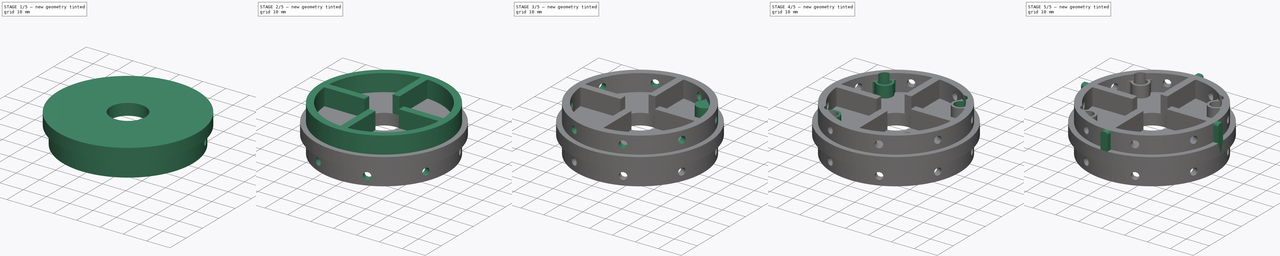
[diagram: build sequence overview — one tinted view per stage of 5, left to right]
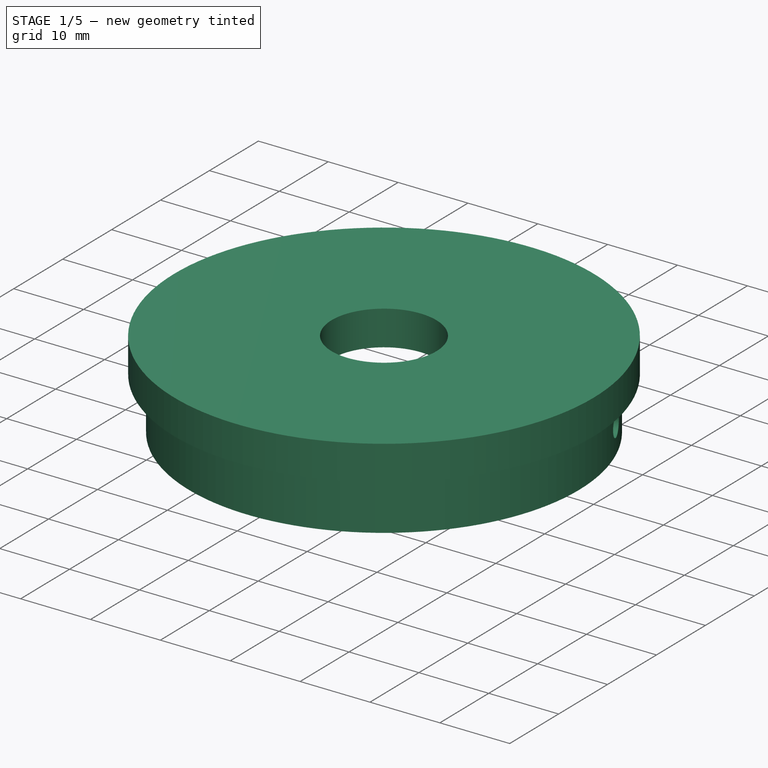
[diagram: stage 1 of 5 — iso view after this stage's code; geometry added in this stage tinted green]
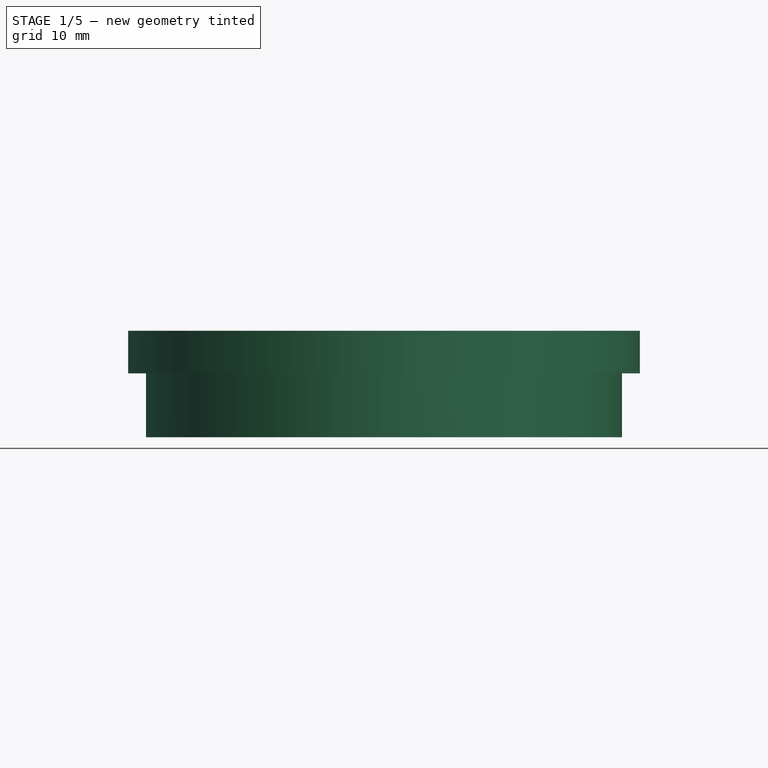
[diagram: stage 1 of 5 — front view after this stage's code; geometry added in this stage tinted green]
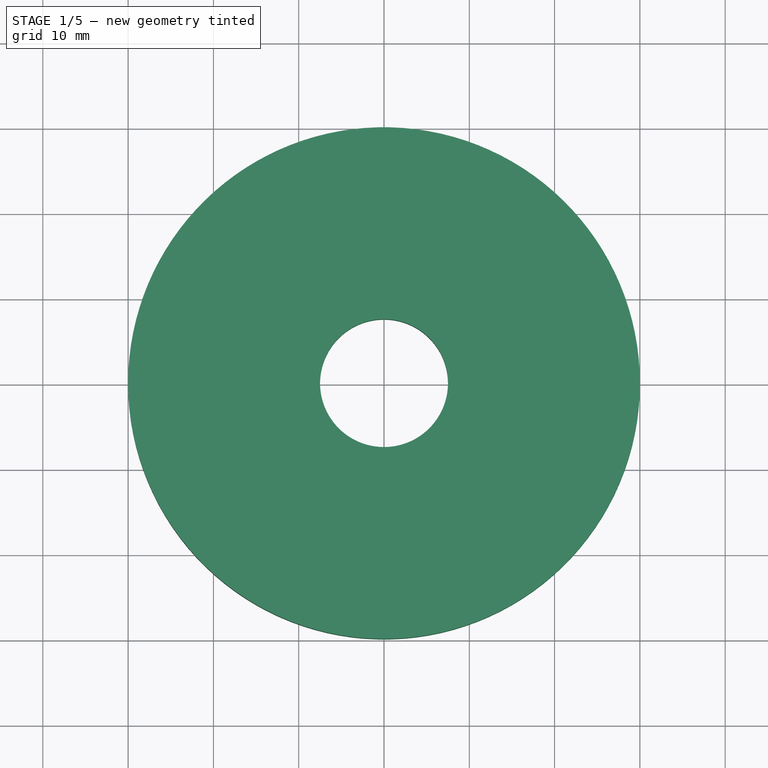
[diagram: stage 1 of 5 — top view after this stage's code; geometry added in this stage tinted green]
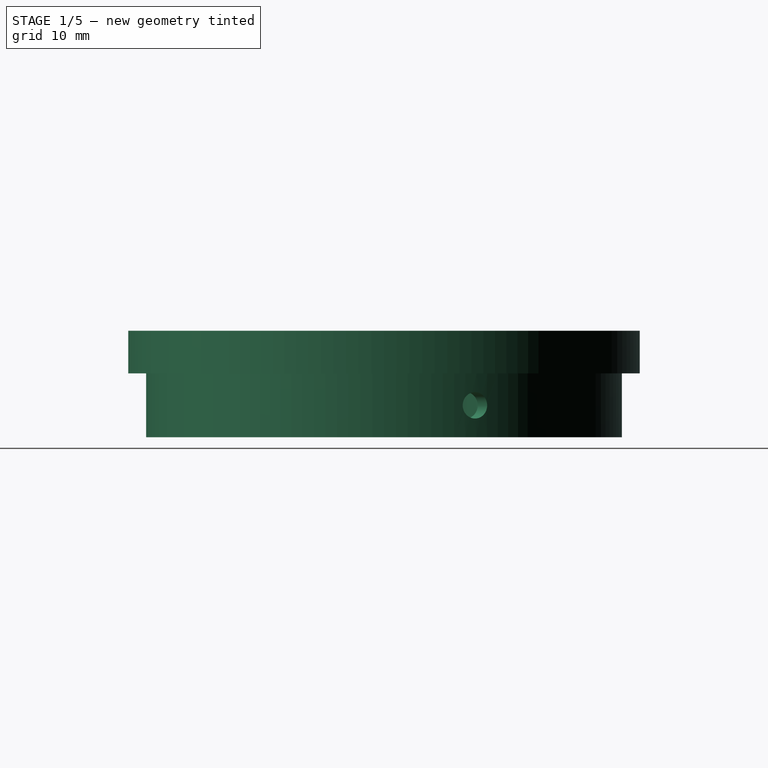
[diagram: stage 1 of 5 — right view after this stage's code; geometry added in this stage tinted green]
FCSTD DOCUMENT  (FreeCAD 1.0R39319 (Git))
Label: upper_retainer
License: All rights reserved
objects: Sketcher::SketchObject×14, PartDesign::Pad×5, PartDesign::Plane×5, PartDesign::Pocket×5, PartDesign::PolarPattern×5, PartDesign::Fillet×1, PartDesign::Body×1
note: 77 computed .brp shape members not serialized (recipe doc carries the construction recipe); baked Part::Feature solids carry a one-line shape summary decoded from their .brp

FEATURE [Sketcher::SketchObject] Sketch
  ArcFitTolerance = 1e-06
  AttachmentSupport = -> [XY_Plane]
  FullyConstrained = true
  MakeInternals = false
  MapMode = 5
  sketch-geometry (2):
    g0: Circle CenterX=0 CenterY=0 CenterZ=0 NormalX=0 NormalY=0 NormalZ=1 AngleXU=0 Radius=30
    g1: Circle CenterX=0 CenterY=0 CenterZ=0 NormalX=0 NormalY=0 NormalZ=1 AngleXU=0 Radius=7.5
  constraints (4):
    c: Diameter(g0) = 60
    c: Coincident(g0,g-1)
    c: Diameter(g1) = 15
    c: Coincident(g1,g0)
FEATURE [PartDesign::Pad] Pad  label="blocco_motore"
  Direction = (0,0,1)
  Length = 5
  Length2 = 10
  Profile = -> Sketch
  ReferenceAxis = -> Sketch [N_Axis]
  Refine = true
  Suppressed = false
  Type = 0
FEATURE [Sketcher::SketchObject] Sketch001
  ArcFitTolerance = 1e-06
  AttachmentSupport = -> [Pad]
  FullyConstrained = true
  MakeInternals = false
  MapMode = 5
  Placement = pos=(0,0,0) rot=(1,0,0;3.14159rad)
  sketch-geometry (18):
    g0: Circle CenterX=0 CenterY=0 CenterZ=0 NormalX=0 NormalY=0 NormalZ=1 AngleXU=0 Radius=27.9
    g1: Circle [constr] CenterX=0 CenterY=0 CenterZ=0 NormalX=0 NormalY=0 NormalZ=1 AngleXU=0 Radius=18.6
    g2: ArcOfCircle CenterX=0 CenterY=0 CenterZ=0 NormalX=0 NormalY=0 NormalZ=1 AngleXU=0 Radius=25 StartAngle=1.63083 EndAngle=3.08156
    g3: LineSegment StartX=-1.5 StartY=24.955 StartZ=0 EndX=-1.5 EndY=18.6 EndZ=0
    g4: LineSegment StartX=-1.5 StartY=18.6 StartZ=0 EndX=1.5 EndY=18.6 EndZ=0
    g5: LineSegment StartX=1.5 StartY=18.6 StartZ=0 EndX=1.5 EndY=24.955 EndZ=0
    g6: LineSegment StartX=18.6 StartY=1.5 StartZ=0 EndX=18.6 EndY=-1.5 EndZ=0
    g7: LineSegment StartX=18.6 StartY=-1.5 StartZ=0 EndX=24.955 EndY=-1.5 EndZ=0
    g8: LineSegment StartX=24.955 StartY=1.5 StartZ=0 EndX=18.6 EndY=1.5 EndZ=0
    g9: LineSegment StartX=-1.5 StartY=-18.6 StartZ=0 EndX=-1.5 EndY=-24.955 EndZ=0
    g10: LineSegment StartX=1.5 StartY=-24.955 StartZ=0 EndX=1.5 EndY=-18.6 EndZ=0
    g11: LineSegment StartX=1.5 StartY=-18.6 StartZ=0 EndX=-1.5 EndY=-18.6 EndZ=0
    g12: LineSegment StartX=-24.955 StartY=-1.5 StartZ=0 EndX=-18.6 EndY=-1.5 EndZ=0
    g13: LineSegment StartX=-18.6 StartY=-1.5 StartZ=0 EndX=-18.6 EndY=1.5 EndZ=0
    g14: LineSegment StartX=-18.6 StartY=1.5 StartZ=0 EndX=-24.955 EndY=1.5 EndZ=0
    g15: ArcOfCircle CenterX=0 CenterY=0 CenterZ=0 NormalX=0 NormalY=0 NormalZ=1 AngleXU=0 Radius=25 StartAngle=0.0600361 EndAngle=1.51076
    g16: ArcOfCircle CenterX=0 CenterY=0 CenterZ=0 NormalX=0 NormalY=0 NormalZ=1 AngleXU=0 Radius=25 StartAngle=4.77243 EndAngle=6.22315
    g17: ArcOfCircle CenterX=0 CenterY=0 CenterZ=0 NormalX=0 NormalY=0 NormalZ=1 AngleXU=0 Radius=25 StartAngle=3.20163 EndAngle=4.65235
  constraints (48):
    c: Diameter(g0) = 55.8
    c: Coincident(g0,g-1)
    c: Diameter(g1) = 37.2
    c: Coincident(g1,g0)
    c: Diameter(g2) = 50
    c: Coincident(g2,g0)
    c: Coincident(g3,g4)
    c: Coincident(g4,g5)
    c: Vertical(g3)
    c: Vertical(g5)
    c: Coincident(g6,g7)
    c: Coincident(g8,g6)
    c: Horizontal(g7)
    c: Horizontal(g8)
    c: Coincident(g10,g11)
    c: Coincident(g11,g9)
    c: Vertical(g9)
    c: Vertical(g10)
    c: Coincident(g12,g13)
    c: Coincident(g13,g14)
    c: Horizontal(g12)
    c: Horizontal(g14)
    c: Tangent(g4,g1)
    c: Symmetric(g3,g4,g-2)
    c: Coincident(g3,g2)
    c: Coincident(g5,g15)
    c: DistanceX(g3,g4) = 3
    c: DistanceY(g6,g6) = 3
    c: Tangent(g6,g1)
    c: Equal(g2,g15)
    c: Coincident(g2,g15)
    c: Coincident(g8,g15)
    c: Coincident(g7,g16)
    c: Symmetric(g6,g6,g-1)
    c: DistanceX(g9,g10) = 3
    c: Tangent(g11,g1)
    c: Symmetric(g9,g10,g-2)
    c: Equal(g2,g16)
    c: Coincident(g2,g16)
    c: Coincident(g9,g17)
    c: Coincident(g10,g16)
    c: DistanceY(g12,g13) = 3
    c: Tangent(g13,g1)
    c: Symmetric(g13,g12,g-1)
    c: Equal(g2,g17)
    c: Coincident(g2,g17)
    c: Coincident(g14,g2)
    c: Coincident(g12,g17)
FEATURE [PartDesign::Pad] Pad001  label="congiunzione_inf"
  BaseFeature = -> Pad
  Direction = (0,0,-1)
  Length = 7.5
  Length2 = 10
  Profile = -> Sketch001
  ReferenceAxis = -> Sketch001 [N_Axis]
  Refine = true
  Suppressed = false
  Type = 0
FEATURE [Sketcher::SketchObject] Sketch002
  ArcFitTolerance = 1e-06
  AttachmentSupport = -> [Pad001]
  ExternalGeometry = -> [Pad001]
  FullyConstrained = true
  MakeInternals = false
  MapMode = 5
  Placement = pos=(0,0,-7.5) rot=(1,0,0;3.14159rad)
  sketch-geometry (2):
    g0: LineSegment StartX=0 StartY=0 StartZ=0 EndX=25.7762 EndY=10.6769 EndZ=0
    g1: LineSegment StartX=0 StartY=0 StartZ=0 EndX=25.7762 EndY=-10.6769 EndZ=0
  constraints (6):
    c: Coincident(g0,g-1)
    c: PointOnObject(g0,g-3)
    c: Coincident(g1,g0)
    c: PointOnObject(g1,g-3)
    c: Angle(g1,g0) = 0.785398
    c: Angle(g-1,g0) = 0.392699
FEATURE [PartDesign::Plane] DatumPlane
  AttachmentSupport = -> [Sketch002]
  Length = 90.9153
  MapMode = 7
  Placement = pos=(25.7762,-10.6769,-7.5) rot=(-0.427192,0.639338,0.639338;3.94904rad)
  ResizeMode = 0
  Width = 62.5215
FEATURE [PartDesign::Plane] DatumPlane001
  AttachmentSupport = -> [Sketch002]
  Length = 90.9153
  MapMode = 7
  Placement = pos=(25.7762,10.6769,-7.5) rot=(0.726831,-0.485653,-0.485653;1.88458rad)
  ResizeMode = 0
  Width = 62.5215
FEATURE [Sketcher::SketchObject] Sketch003
  ArcFitTolerance = 1e-06
  AttachmentSupport = -> [DatumPlane001]
  FullyConstrained = true
  MakeInternals = false
  MapMode = 5
  Placement = pos=(25.7762,10.6769,-7.5) rot=(0.726831,-0.485653,-0.485653;1.88458rad)
  sketch-geometry (1):
    g0: Circle CenterX=0 CenterY=3.75 CenterZ=0 NormalX=0 NormalY=0 NormalZ=1 AngleXU=0 Radius=1.55
  constraints (3):
    c: Diameter(g0) = 3.1
    c: PointOnObject(g0,g-2)
    c: Distance(g0,g-1) = 3.75
FEATURE [PartDesign::Pocket] Pocket  label="sede_viti_inferiori_1"
  BaseFeature = -> Pad001
  Direction = (0.92388,0.382683,4e-16)
  Length = 5
  Length2 = 5
  Profile = -> Sketch003
  ReferenceAxis = -> Sketch003 [N_Axis]
  Refine = true
  Reversed = true
  Suppressed = false
  Type = 0
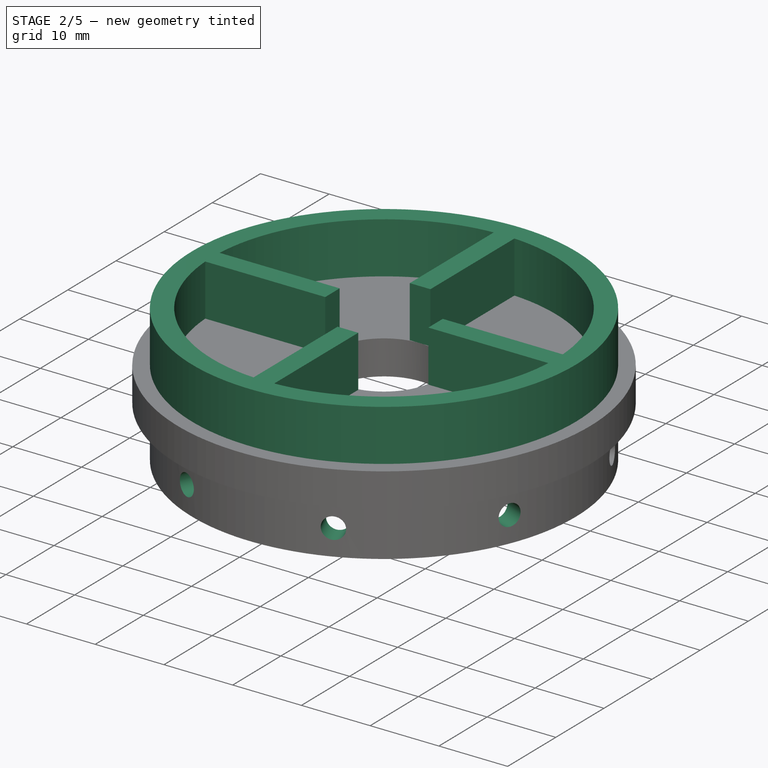
[diagram: stage 2 of 5 — iso view after this stage's code; geometry added in this stage tinted green]
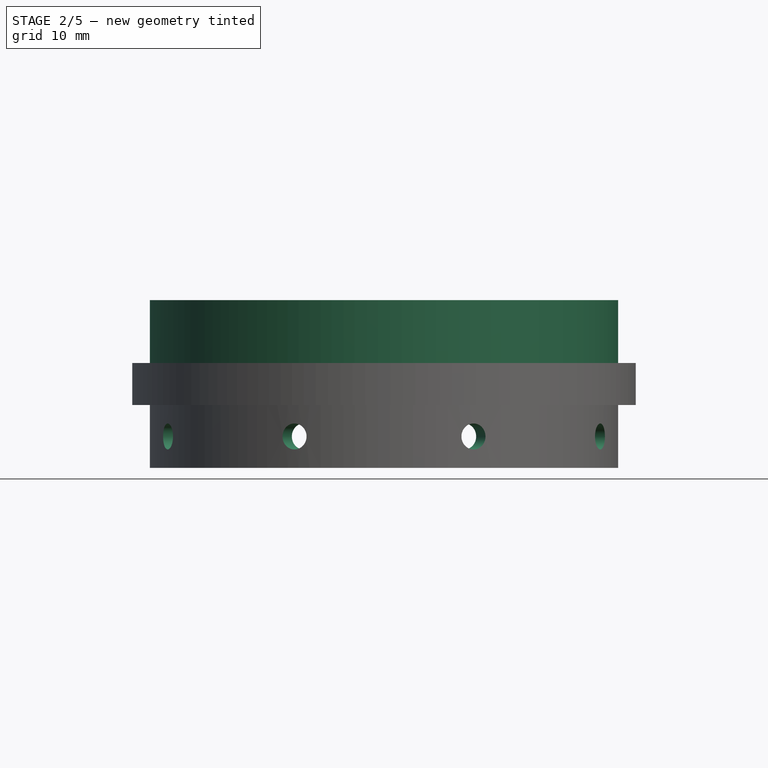
[diagram: stage 2 of 5 — front view after this stage's code; geometry added in this stage tinted green]
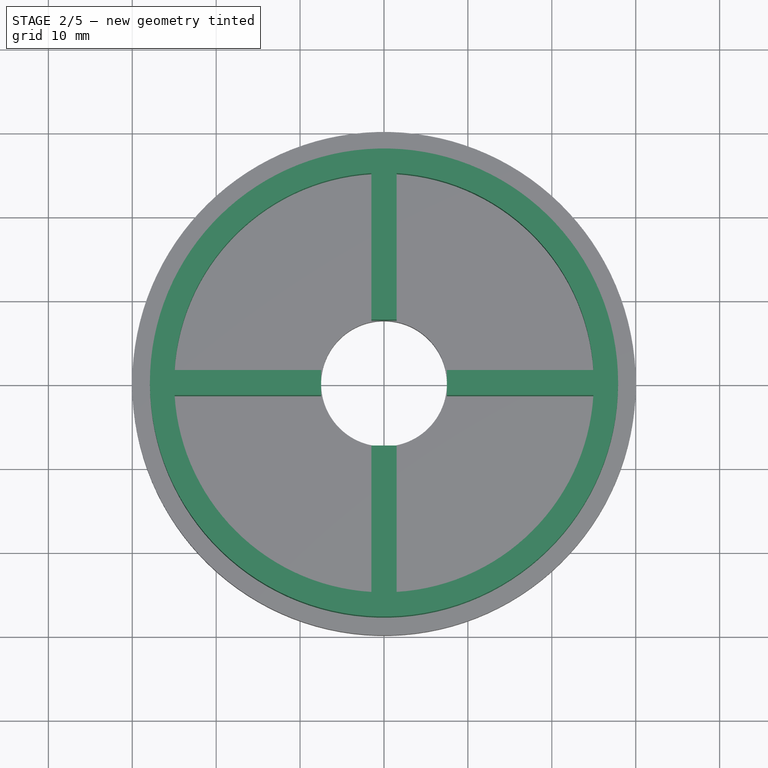
[diagram: stage 2 of 5 — top view after this stage's code; geometry added in this stage tinted green]
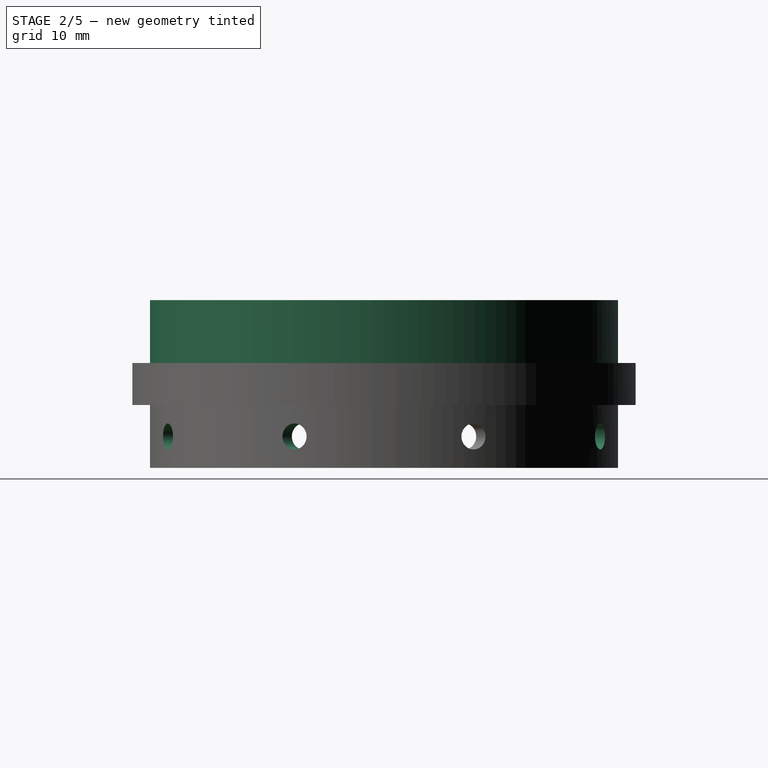
[diagram: stage 2 of 5 — right view after this stage's code; geometry added in this stage tinted green]
FEATURE [Sketcher::SketchObject] Sketch004
  ArcFitTolerance = 1e-06
  AttachmentSupport = -> [DatumPlane]
  FullyConstrained = true
  MakeInternals = false
  MapMode = 5
  Placement = pos=(25.7762,-10.6769,-7.5) rot=(-0.427192,0.639338,0.639338;3.94904rad)
  sketch-geometry (1):
    g0: Circle CenterX=0 CenterY=3.75 CenterZ=0 NormalX=0 NormalY=0 NormalZ=1 AngleXU=0 Radius=1.55
  constraints (3):
    c: Diameter(g0) = 3.1
    c: PointOnObject(g0,g-2)
    c: DistanceY(g-1,g0) = 3.75
FEATURE [PartDesign::Pocket] Pocket001  label="sede_viti_inferiori_2"
  BaseFeature = -> Pocket
  Direction = (0.92388,-0.382683,-1e-16)
  Length = 5
  Length2 = 5
  Profile = -> Sketch004
  ReferenceAxis = -> Sketch004 [N_Axis]
  Refine = true
  Reversed = true
  Suppressed = false
  Type = 0
FEATURE [PartDesign::PolarPattern] PolarPattern
  Angle = 360
  Axis = -> Z_Axis
  BaseFeature = -> Pocket001
  Mode = 0
  Occurrences = 4
  Offset = 120
  Originals = -> [Pocket,Pocket001]
  Refine = true
  Suppressed = false
  TransformMode = 0
FEATURE [Sketcher::SketchObject] Sketch005
  ArcFitTolerance = 1e-06
  AttachmentSupport = -> [PolarPattern]
  ExternalGeometry = -> [PolarPattern]
  FullyConstrained = true
  MakeInternals = false
  MapMode = 5
  Placement = pos=(0,0,5) rot=(0,0,1;0rad)
  sketch-geometry (18):
    g0: Circle CenterX=0 CenterY=0 CenterZ=0 NormalX=0 NormalY=0 NormalZ=1 AngleXU=0 Radius=27.9
    g1: Circle [constr] CenterX=0 CenterY=0 CenterZ=0 NormalX=0 NormalY=0 NormalZ=1 AngleXU=0 Radius=7.49999
    g2: ArcOfCircle CenterX=0 CenterY=0 CenterZ=0 NormalX=0 NormalY=0 NormalZ=1 AngleXU=0 Radius=25 StartAngle=1.63083 EndAngle=3.08156
    g3: LineSegment StartX=-1.5 StartY=24.955 StartZ=0 EndX=-1.5 EndY=7.49999 EndZ=0
    g4: LineSegment StartX=-1.5 StartY=7.49999 StartZ=0 EndX=1.5 EndY=7.49999 EndZ=0
    g5: LineSegment StartX=1.5 StartY=7.49999 StartZ=0 EndX=1.5 EndY=24.955 EndZ=0
    g6: LineSegment StartX=7.49999 StartY=1.5 StartZ=0 EndX=7.49999 EndY=-1.5 EndZ=0
    g7: LineSegment StartX=7.49999 StartY=-1.5 StartZ=0 EndX=24.955 EndY=-1.5 EndZ=0
    g8: LineSegment StartX=24.955 StartY=1.5 StartZ=0 EndX=7.49999 EndY=1.5 EndZ=0
    g9: LineSegment StartX=-1.5 StartY=-7.49999 StartZ=0 EndX=-1.5 EndY=-24.955 EndZ=0
    g10: LineSegment StartX=1.5 StartY=-24.955 StartZ=0 EndX=1.5 EndY=-7.49999 EndZ=0
    g11: LineSegment StartX=1.5 StartY=-7.49999 StartZ=0 EndX=-1.5 EndY=-7.49999 EndZ=0
    g12: LineSegment StartX=-24.955 StartY=-1.5 StartZ=0 EndX=-7.49999 EndY=-1.5 EndZ=0
    g13: LineSegment StartX=-7.49999 StartY=-1.5 StartZ=0 EndX=-7.49999 EndY=1.5 EndZ=0
    g14: LineSegment StartX=-7.49999 StartY=1.5 StartZ=0 EndX=-24.955 EndY=1.5 EndZ=0
    g15: ArcOfCircle CenterX=0 CenterY=0 CenterZ=0 NormalX=0 NormalY=0 NormalZ=1 AngleXU=0 Radius=25 StartAngle=0.0600361 EndAngle=1.51076
    g16: ArcOfCircle CenterX=0 CenterY=0 CenterZ=0 NormalX=0 NormalY=0 NormalZ=1 AngleXU=0 Radius=25 StartAngle=4.77243 EndAngle=6.22315
    g17: ArcOfCircle CenterX=0 CenterY=0 CenterZ=0 NormalX=0 NormalY=0 NormalZ=1 AngleXU=0 Radius=25 StartAngle=3.20163 EndAngle=4.65235
  constraints (48):
    c: Diameter(g0) = 55.8
    c: Coincident(g0,g-1)
    c: Coincident(g1,g0)
    c: Tangent(g1,g-3)
    c: Diameter(g2) = 50
    c: Coincident(g2,g0)
    c: Coincident(g3,g4)
    c: Coincident(g4,g5)
    c: Vertical(g3)
    c: Vertical(g5)
    c: Coincident(g6,g7)
    c: Coincident(g8,g6)
    c: Horizontal(g7)
    c: Horizontal(g8)
    c: Coincident(g10,g11)
    c: Coincident(g11,g9)
    c: Vertical(g9)
    c: Vertical(g10)
    c: Coincident(g12,g13)
    c: Coincident(g13,g14)
    c: Horizontal(g12)
    c: Horizontal(g14)
    c: Tangent(g4,g1)
    c: Tangent(g13,g1)
    c: Tangent(g11,g1)
    c: Tangent(g6,g1)
    c: Symmetric(g3,g4,g-2)
    c: Symmetric(g13,g12,g-1)
    c: Symmetric(g6,g6,g-1)
    c: Symmetric(g9,g10,g-2)
    c: Distance(g3,g5) = 3
    c: Distance(g8,g7) = 3
    c: DistanceX(g9,g10) = 3
    c: Distance(g14,g12) = 3
    c: Equal(g2,g15)
    c: Coincident(g2,g15)
    c: Equal(g2,g16)
    c: Coincident(g2,g16)
    c: Equal(g2,g17)
    c: Coincident(g2,g17)
    c: Coincident(g3,g2)
    c: Coincident(g5,g15)
    c: Coincident(g8,g15)
    c: Coincident(g7,g16)
    c: Coincident(g10,g16)
    c: Coincident(g9,g17)
    c: Coincident(g14,g2)
    c: Coincident(g12,g17)
FEATURE [PartDesign::Pad] Pad002  label="congiunzione_sup"
  BaseFeature = -> PolarPattern
  Direction = (0,0,1)
  Length = 7.5
  Length2 = 10
  Profile = -> Sketch005
  ReferenceAxis = -> Sketch005 [N_Axis]
  Refine = true
  Suppressed = false
  Type = 0
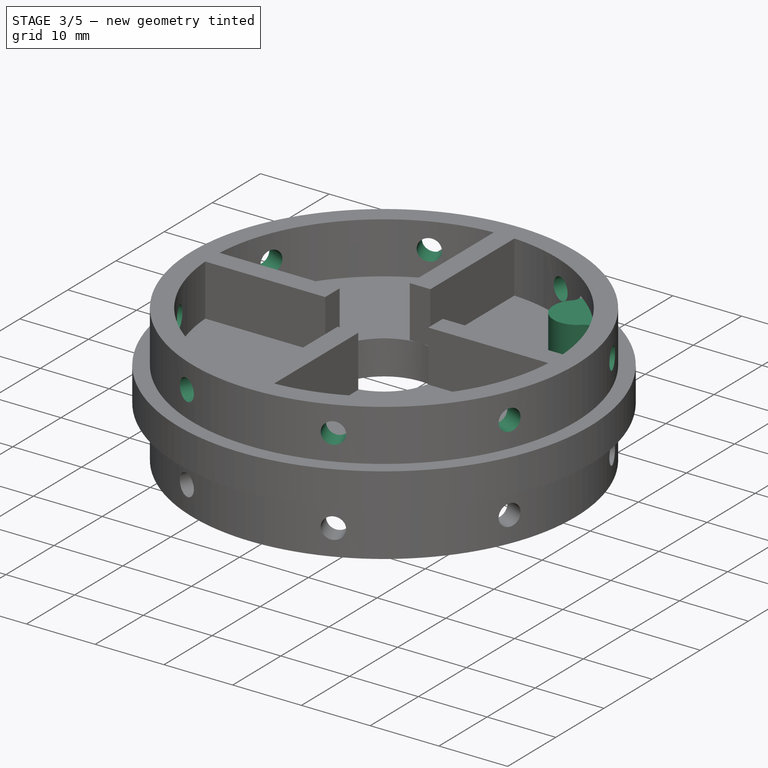
[diagram: stage 3 of 5 — iso view after this stage's code; geometry added in this stage tinted green]
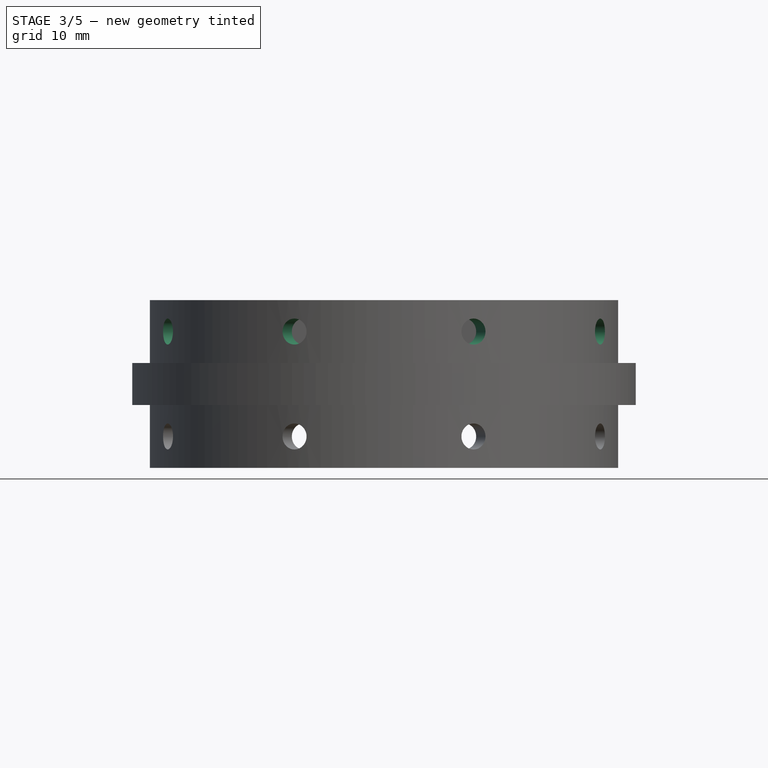
[diagram: stage 3 of 5 — front view after this stage's code; geometry added in this stage tinted green]
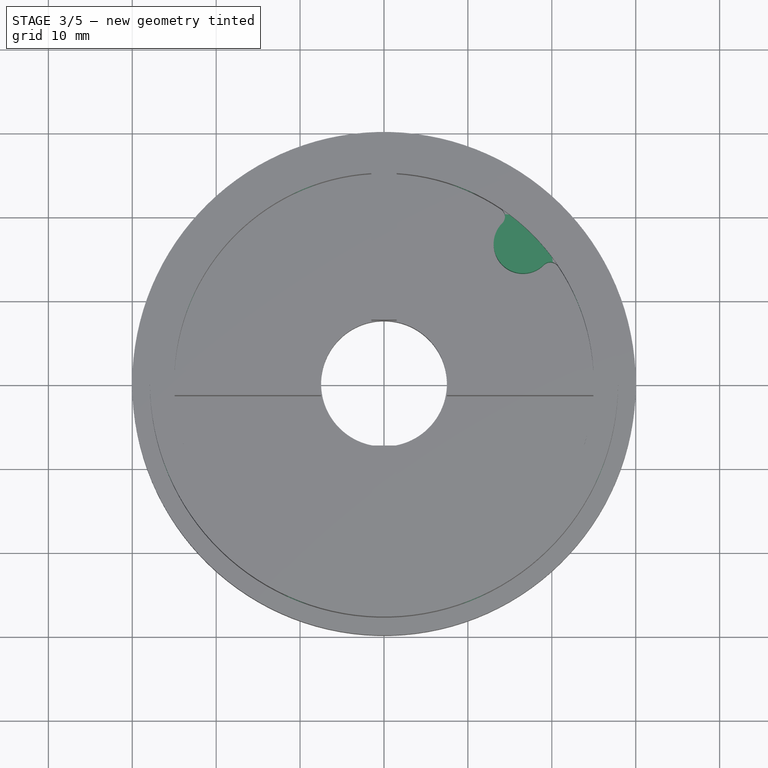
[diagram: stage 3 of 5 — top view after this stage's code; geometry added in this stage tinted green]
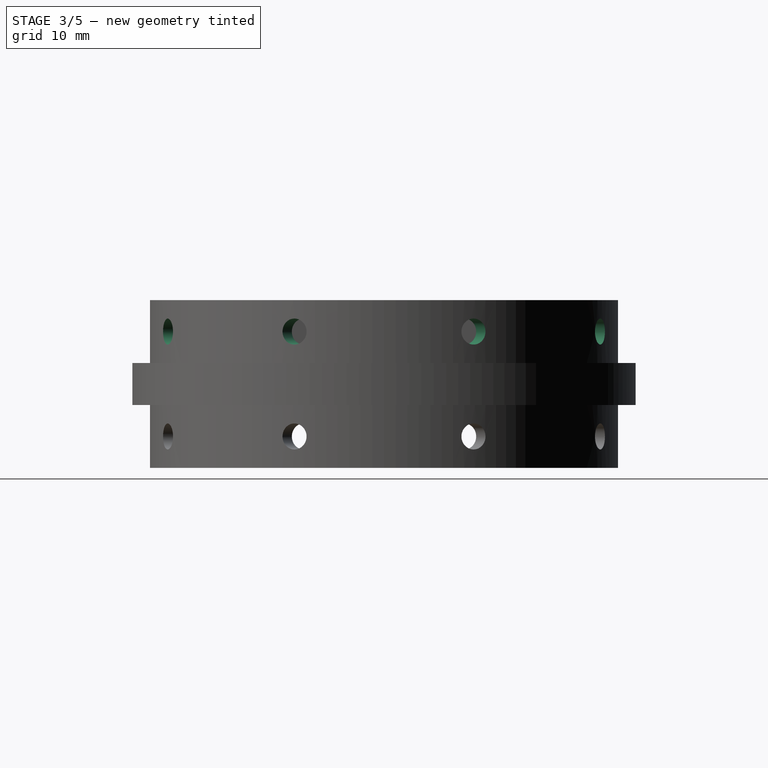
[diagram: stage 3 of 5 — right view after this stage's code; geometry added in this stage tinted green]
FEATURE [Sketcher::SketchObject] Sketch006
  ArcFitTolerance = 1e-06
  AttachmentSupport = -> [Pad002]
  ExternalGeometry = -> [Sketch002,Pad002]
  FullyConstrained = true
  MakeInternals = false
  MapMode = 5
  Placement = pos=(0,0,12.5) rot=(0,0,1;0rad)
  sketch-geometry (2):
    g0: LineSegment StartX=0 StartY=0 StartZ=0 EndX=25.7762 EndY=10.6769 EndZ=0
    g1: LineSegment StartX=0 StartY=0 StartZ=0 EndX=25.7762 EndY=-10.6769 EndZ=0
  constraints (4):
    c: Coincident(g0,g-1)
    c: Coincident(g0,g-3)
    c: Coincident(g1,g0)
    c: Coincident(g1,g-4)
FEATURE [PartDesign::Plane] DatumPlane002
  AttachmentSupport = -> [Sketch006]
  Length = 90.9153
  MapMode = 7
  Placement = pos=(25.7762,-10.6769,12.5) rot=(-0.427192,0.639338,0.639338;3.94904rad)
  ResizeMode = 0
  Width = 62.5215
FEATURE [PartDesign::Plane] DatumPlane003
  AttachmentSupport = -> [Sketch006]
  Length = 90.9153
  MapMode = 7
  Placement = pos=(25.7762,10.6769,12.5) rot=(0.726831,-0.485653,-0.485653;1.88458rad)
  ResizeMode = 0
  Width = 62.5215
FEATURE [Sketcher::SketchObject] Sketch007
  ArcFitTolerance = 1e-06
  AttachmentSupport = -> [DatumPlane003]
  FullyConstrained = true
  MakeInternals = false
  MapMode = 5
  Placement = pos=(25.7762,10.6769,12.5) rot=(0.726831,-0.485653,-0.485653;1.88458rad)
  sketch-geometry (1):
    g0: Circle CenterX=0 CenterY=-3.75 CenterZ=0 NormalX=0 NormalY=0 NormalZ=1 AngleXU=0 Radius=1.55
  constraints (3):
    c: Diameter(g0) = 3.1
    c: PointOnObject(g0,g-2)
    c: DistanceY(g0,g-1) = 3.75
FEATURE [Sketcher::SketchObject] Sketch008
  ArcFitTolerance = 1e-06
  AttachmentSupport = -> [DatumPlane002]
  FullyConstrained = true
  MakeInternals = false
  MapMode = 5
  Placement = pos=(25.7762,-10.6769,12.5) rot=(-0.427192,0.639338,0.639338;3.94904rad)
  sketch-geometry (1):
    g0: Circle CenterX=0 CenterY=-3.75 CenterZ=0 NormalX=0 NormalY=0 NormalZ=1 AngleXU=0 Radius=1.55
  constraints (3):
    c: Diameter(g0) = 3.1
    c: PointOnObject(g0,g-2)
    c: DistanceY(g0,g-1) = 3.75
FEATURE [PartDesign::Pocket] Pocket002  label="sede_viti_sup_1"
  BaseFeature = -> Pad002
  Direction = (0.92388,0.382683,4e-16)
  Length = 5
  Length2 = 5
  Profile = -> Sketch007
  ReferenceAxis = -> Sketch007 [N_Axis]
  Refine = true
  Reversed = true
  Suppressed = false
  Type = 0
FEATURE [PartDesign::Pocket] Pocket003  label="sede_viti_sup_2"
  BaseFeature = -> Pocket002
  Direction = (0.92388,-0.382683,-1e-16)
  Length = 5
  Length2 = 5
  Profile = -> Sketch008
  ReferenceAxis = -> Sketch008 [N_Axis]
  Refine = true
  Reversed = true
  Suppressed = false
  Type = 0
FEATURE [PartDesign::PolarPattern] PolarPattern001
  Angle = 360
  Axis = -> Z_Axis
  BaseFeature = -> Pocket003
  Mode = 0
  Occurrences = 4
  Offset = 120
  Originals = -> [Pocket003,Pocket002]
  Refine = true
  Suppressed = false
  TransformMode = 0
FEATURE [Sketcher::SketchObject] Sketch010
  ArcFitTolerance = 1e-06
  FullyConstrained = true
  MakeInternals = false
  MapMode = 5
  Placement = pos=(0,0,5) rot=(0,0,1;0rad)
FEATURE [PartDesign::Plane] DatumPlane004
  AttachmentOffset = pos=(0,0,5) rot=(0,0,1;0rad)
  AttachmentSupport = -> [PolarPattern001]
  Length = 72
  MapMode = 5
  Placement = pos=(0,0,10) rot=(0,0,1;0rad)
  ResizeMode = 0
  Width = 72
FEATURE [Sketcher::SketchObject] Sketch009
  ArcFitTolerance = 1e-06
  AttachmentSupport = -> [DatumPlane004]
  ExternalGeometry = -> [PolarPattern001]
  FullyConstrained = false
  MakeInternals = false
  MapMode = 5
  Placement = pos=(0,0,10) rot=(0,0,1;0rad)
  sketch-geometry (9):
    g0: LineSegment [constr] StartX=0 StartY=0 StartZ=0 EndX=16.566 EndY=16.566 EndZ=0
    g1: ArcOfCircle CenterX=16.566 CenterY=16.566 CenterZ=0 NormalX=0 NormalY=0 NormalZ=1 AngleXU=0 Radius=3.5 StartAngle=2.35619 EndAngle=5.49779
    g2: ArcOfCircle CenterX=19.8334 CenterY=13.2987 CenterZ=0 NormalX=0 NormalY=0 NormalZ=1 AngleXU=0 Radius=1.12076 StartAngle=0.590664 EndAngle=2.35619
    g3: ArcOfCircle CenterX=13.2987 CenterY=19.8334 CenterZ=0 NormalX=0 NormalY=0 NormalZ=1 AngleXU=0 Radius=1.12076 StartAngle=5.49779 EndAngle=7.26332
    g4: LineSegment [constr] StartX=16.566 StartY=16.566 StartZ=0 EndX=22.6228 EndY=10.5093 EndZ=0
    g5: LineSegment [constr] StartX=16.566 StartY=16.566 StartZ=0 EndX=13.5436 EndY=19.5884 EndZ=0
    g6: LineSegment StartX=13.9228 StartY=20.7643 StartZ=0 EndX=14.6206 EndY=21.8049 EndZ=0
    g7: LineSegment StartX=14.6206 StartY=21.8049 StartZ=0 EndX=22.2915 EndY=14.9469 EndZ=0
    g8: LineSegment StartX=22.2915 StartY=14.9469 StartZ=0 EndX=20.7643 EndY=13.9228 EndZ=0
  constraints (22):
    c: Coincident(g0,g-1)
    c: Angle(g-1,g0) = 0.785398
    c: Diameter(g1) = 7
    c: Coincident(g1,g0)
    c: Distance(g0,g0) = 23.4279
    c: Tangent(g3,g-4)
    c: Perpendicular(g0,g4)
    c: Coincident(g0,g4)
    c: Coincident(g5,g0)
    c: Parallel(g5,g4)
    c: Perpendicular(g3,g5)
    c: Coincident(g6,g7)
    c: Coincident(g7,g8)
    c: Coincident(g3,g6)
    c: Tangent(g3,g1) = 1.5708
    c: Tangent(g2,g1) = 1.5708
    c: Tangent(g2,g-4) = -1.5708
    c: Coincident(g8,g2)
    c: Perpendicular(g-4,g6)
    c: Perpendicular(g2,g8)
    c: Perpendicular(g2,g4)
    c: Perpendicular(g3,g6)
FEATURE [PartDesign::Pad] Pad003  label="sede_tondo_1"
  BaseFeature = -> PolarPattern001
  Direction = (0,0,1)
  Length = 15
  Length2 = 10
  Profile = -> Sketch009
  ReferenceAxis = -> Sketch009 [N_Axis]
  Refine = true
  Reversed = true
  Suppressed = false
  Type = 0
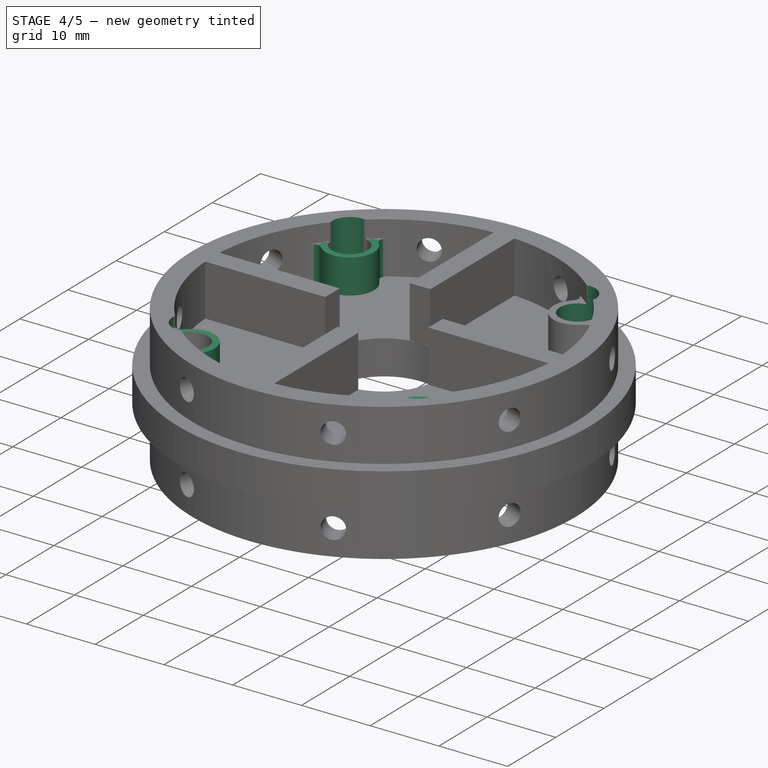
[diagram: stage 4 of 5 — iso view after this stage's code; geometry added in this stage tinted green]
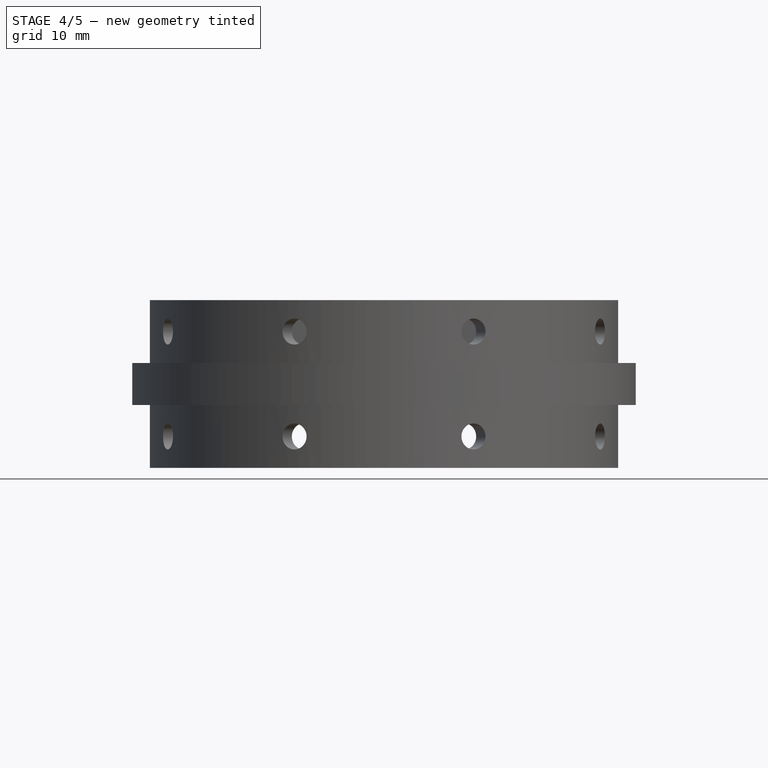
[diagram: stage 4 of 5 — front view after this stage's code; geometry added in this stage tinted green]
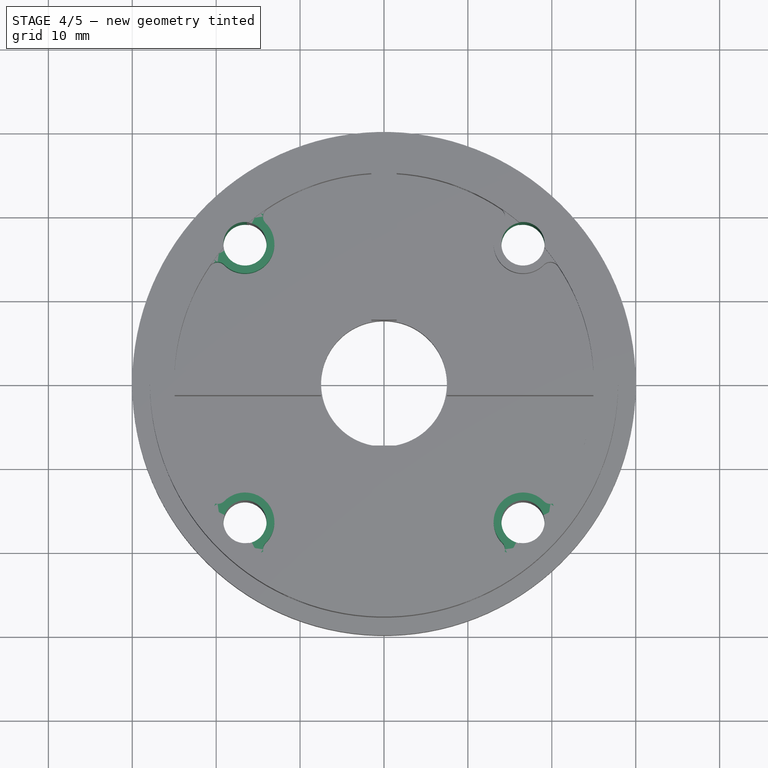
[diagram: stage 4 of 5 — top view after this stage's code; geometry added in this stage tinted green]
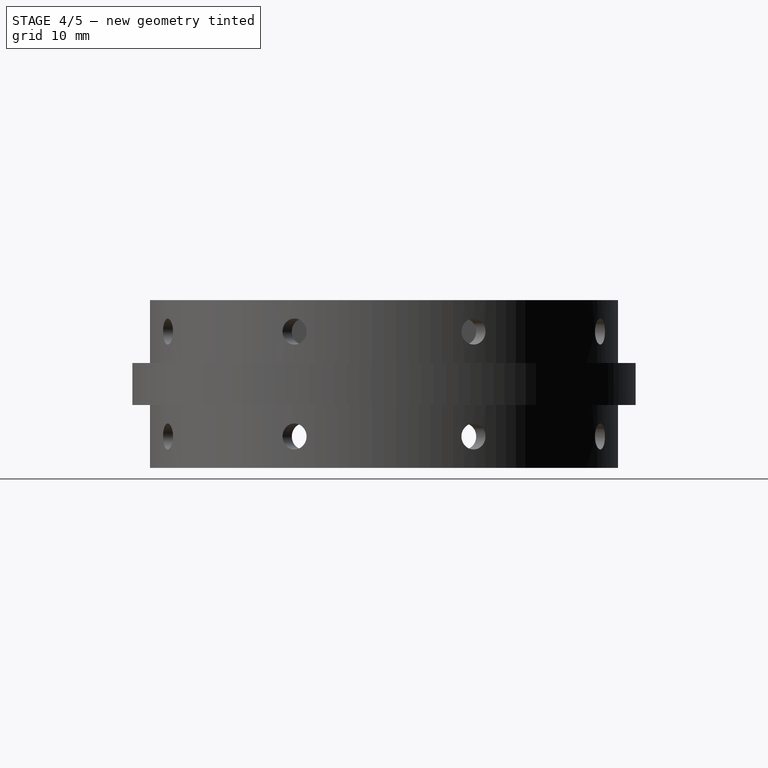
[diagram: stage 4 of 5 — right view after this stage's code; geometry added in this stage tinted green]
FEATURE [Sketcher::SketchObject] Sketch011
  ArcFitTolerance = 1e-06
  AttachmentSupport = -> [Pad003]
  FullyConstrained = true
  MakeInternals = false
  MapMode = 5
  Placement = pos=(0,0,10) rot=(0,0,1;0rad)
FEATURE [Sketcher::SketchObject] Sketch012
  ArcFitTolerance = 1e-06
  AttachmentSupport = -> [Pad003]
  ExternalGeometry = -> [Pad003]
  FullyConstrained = true
  MakeInternals = false
  MapMode = 5
  Placement = pos=(0,0,12.5) rot=(0,0,1;0rad)
  sketch-geometry (1):
    g0: Circle CenterX=16.566 CenterY=16.566 CenterZ=0 NormalX=0 NormalY=0 NormalZ=1 AngleXU=0 Radius=2.575
  constraints (2):
    c: Diameter(g0) = 5.15
    c: Coincident(g0,g-3)
FEATURE [PartDesign::Pocket] Pocket004  label="sede_tondo_2"
  BaseFeature = -> Pad003
  Direction = (0,0,-1)
  Length = 5
  Length2 = 5
  Profile = -> Sketch012
  ReferenceAxis = -> Sketch012 [N_Axis]
  Refine = true
  Suppressed = false
  Type = 1
FEATURE [PartDesign::PolarPattern] PolarPattern002
  Angle = 360
  Axis = -> Sketch009 [N_Axis]
  BaseFeature = -> Pocket004
  Mode = 0
  Occurrences = 4
  Offset = 120
  Originals = -> [Pad003]
  Refine = true
  Suppressed = false
  TransformMode = 0
FEATURE [PartDesign::PolarPattern] PolarPattern003
  Angle = 360
  Axis = -> Sketch012 [N_Axis]
  BaseFeature = -> PolarPattern002
  Mode = 0
  Occurrences = 4
  Offset = 120
  Originals = -> [Pocket004]
  Refine = true
  Suppressed = false
  TransformMode = 0
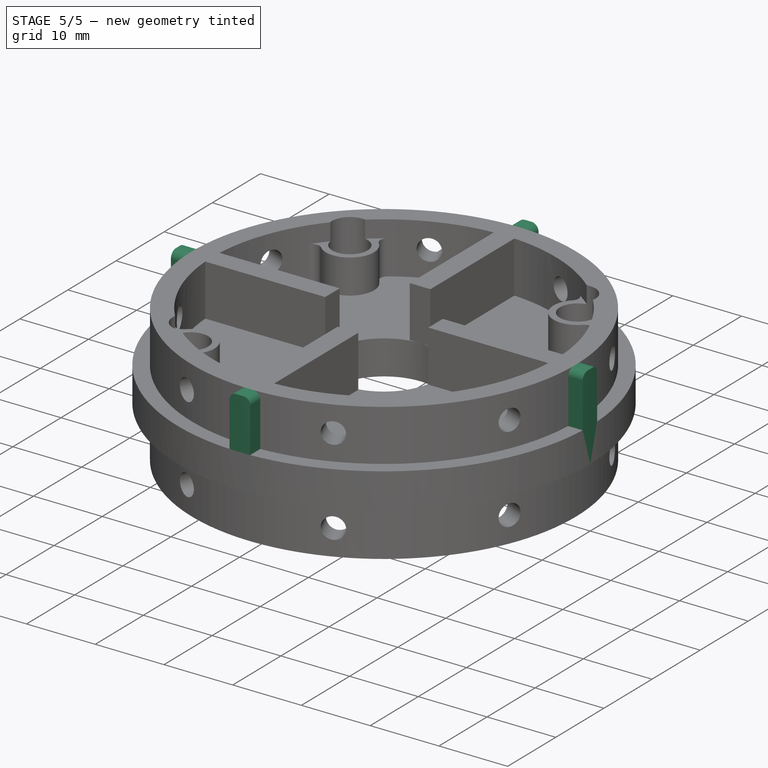
[diagram: stage 5 of 5 — iso view after this stage's code; geometry added in this stage tinted green]
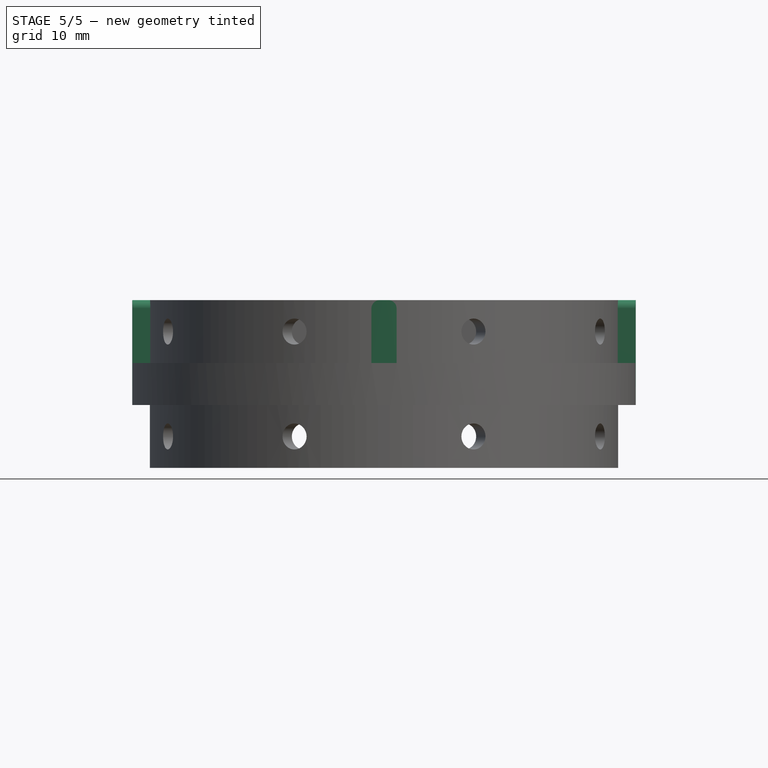
[diagram: stage 5 of 5 — front view after this stage's code; geometry added in this stage tinted green]
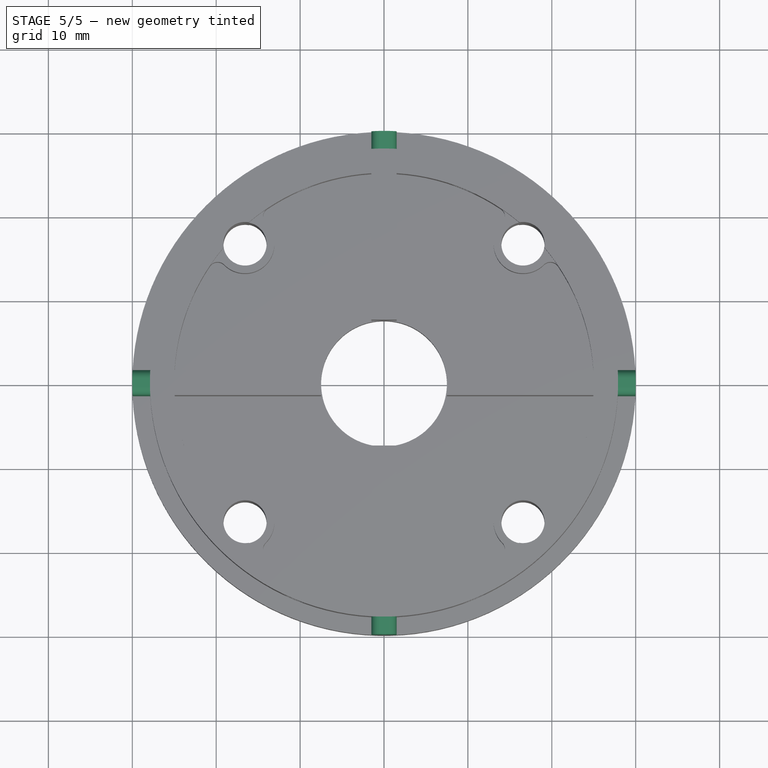
[diagram: stage 5 of 5 — top view after this stage's code; geometry added in this stage tinted green]
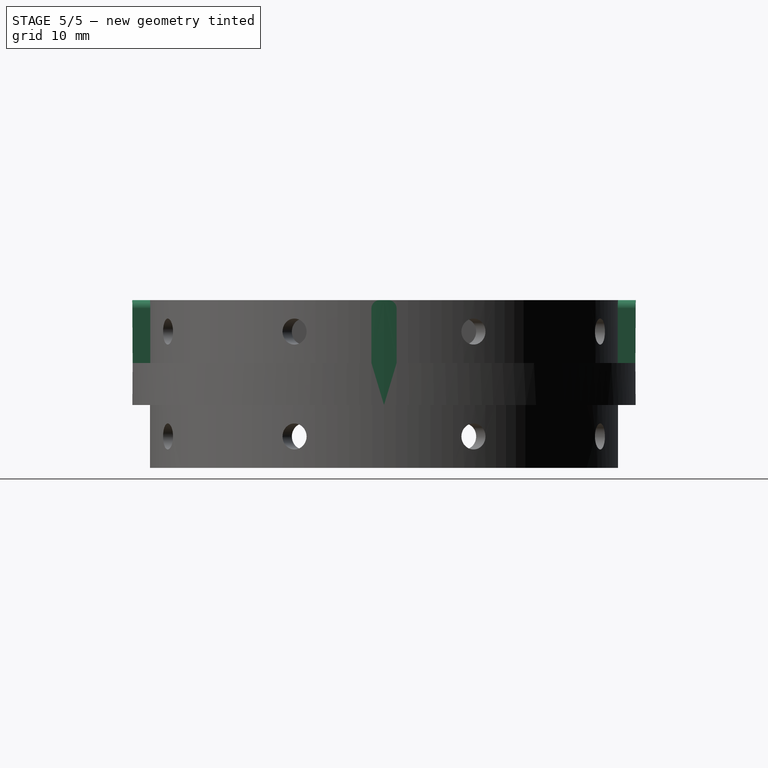
[diagram: stage 5 of 5 — right view after this stage's code; geometry added in this stage tinted green]
FEATURE [Sketcher::SketchObject] Sketch013
  ArcFitTolerance = 1e-06
  AttachmentSupport = -> [PolarPattern003]
  ExternalGeometry = -> [PolarPattern003]
  FullyConstrained = false
  MakeInternals = false
  MapMode = 5
  Placement = pos=(0,0,12.5) rot=(0,0,1;0rad)
  sketch-geometry (4):
    g0: LineSegment StartX=27.476 StartY=1.5 StartZ=0 EndX=29.9625 EndY=1.5 EndZ=0
    g1: LineSegment StartX=29.9625 StartY=-1.5 StartZ=0 EndX=27.476 EndY=-1.5 EndZ=0
    g2: LineSegment StartX=27.476 StartY=-1.5 StartZ=0 EndX=27.476 EndY=1.5 EndZ=0
    g3: ArcOfCircle CenterX=0 CenterY=0 CenterZ=0 NormalX=0 NormalY=0 NormalZ=1 AngleXU=0 Radius=30 StartAngle=6.23316 EndAngle=6.33321
  constraints (11):
    c: PointOnObject(g0,g-5)
    c: Coincident(g1,g2)
    c: Coincident(g2,g0)
    c: Horizontal(g0)
    c: Horizontal(g1)
    c: DistanceY(g1,g0) = 3
    c: Symmetric(g0,g1,g-1)
    c: Coincident(g3,g-1)
    c: Coincident(g3,g0)
    c: PointOnObject(g3,g1)
    c: PointOnObject(g1,g-5)
FEATURE [PartDesign::Pad] Pad004
  BaseFeature = -> PolarPattern003
  Direction = (0,0,1)
  Length = 10
  Length2 = 10
  Profile = -> Sketch013
  ReferenceAxis = -> Sketch013 [N_Axis]
  Refine = true
  Reversed = true
  Suppressed = false
  Type = 0
FEATURE [PartDesign::PolarPattern] PolarPattern004
  Angle = 360
  Axis = -> Sketch013 [N_Axis]
  BaseFeature = -> Pad004
  Mode = 0
  Occurrences = 4
  Offset = 120
  Originals = -> [Pad004]
  Refine = true
  Suppressed = false
  TransformMode = 0
FEATURE [PartDesign::Fillet] Fillet
  Base = -> PolarPattern004 [Edge27,Edge12,Edge25,Edge42,Edge40,Edge57,Edge5,Edge46]
  BaseFeature = -> PolarPattern004
  Radius = 1
  Refine = true
  SupportTransform = false
  Suppressed = false
  UseAllEdges = false
FEATURE [PartDesign::Body] Body
  AllowCompound = false
  Group = -> [Sketch,Pad,Sketch001,Pad001,Sketch002,DatumPlane,DatumPlane001,Sketch003,Pocket,Sketch004,Pocket001,PolarPattern,Sketch005,Pad002,Sketch006,DatumPlane002,DatumPlane003,Sketch007,Sketch008,Pocket002,Pocket003,PolarPattern001,Sketch009,Sketch010,DatumPlane004,Pad003,Sketch011,Sketch012,Pocket004,PolarPattern002,PolarPattern003,Sketch013,Pad004,PolarPattern004,Fillet]
  Origin = -> Origin
  Tip = -> Fillet
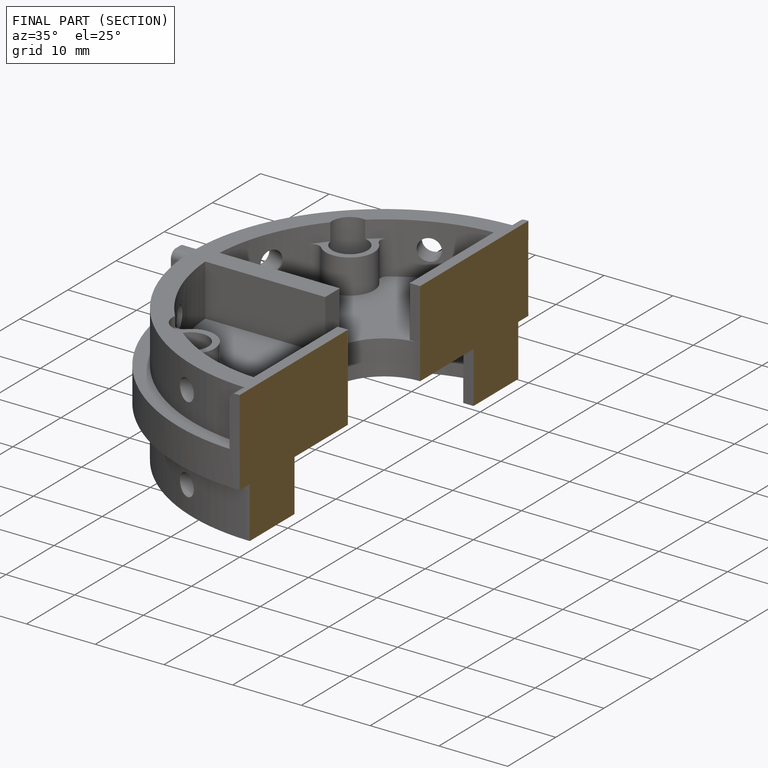
[diagram: finished part — half-section view (interior)]
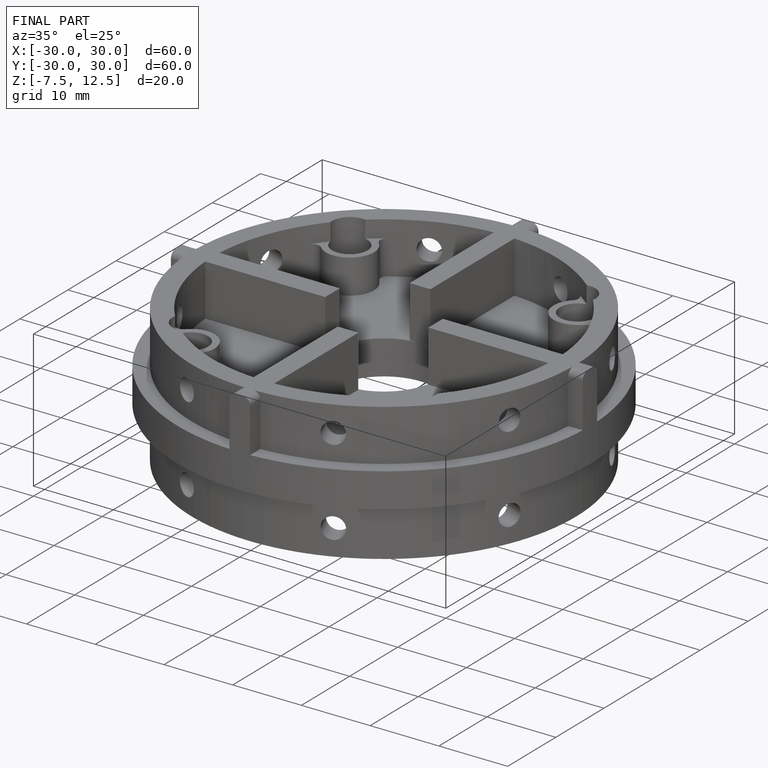
[diagram: finished part — iso view with bounding-box wireframe]
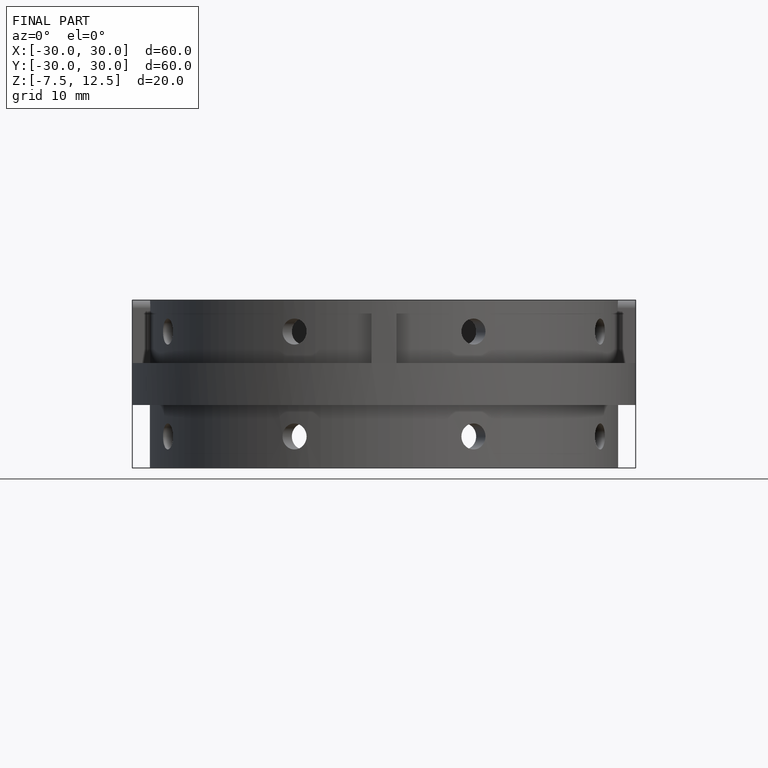
[diagram: finished part — front view with bounding-box wireframe]
